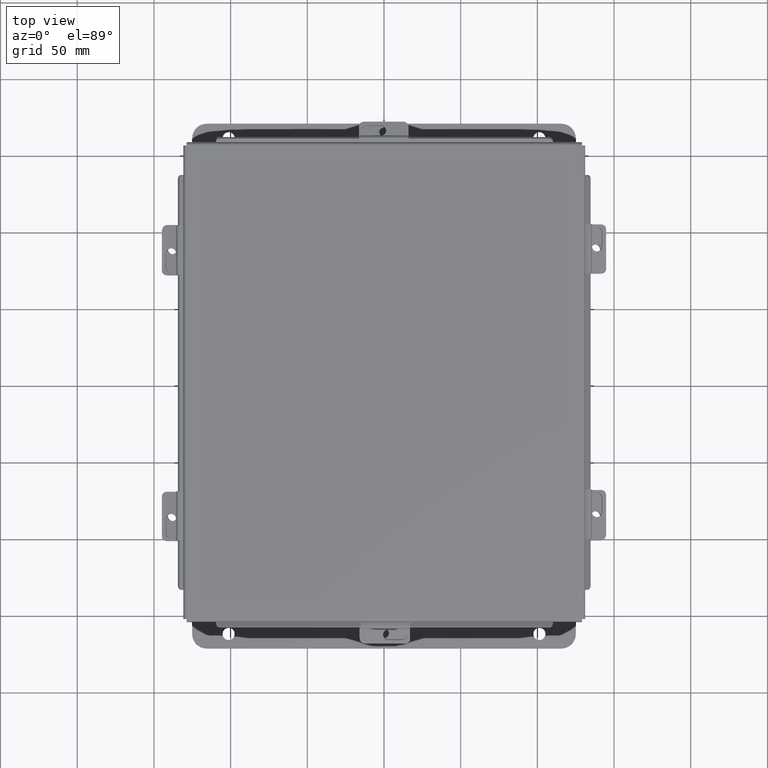
[diagram: clean part render]
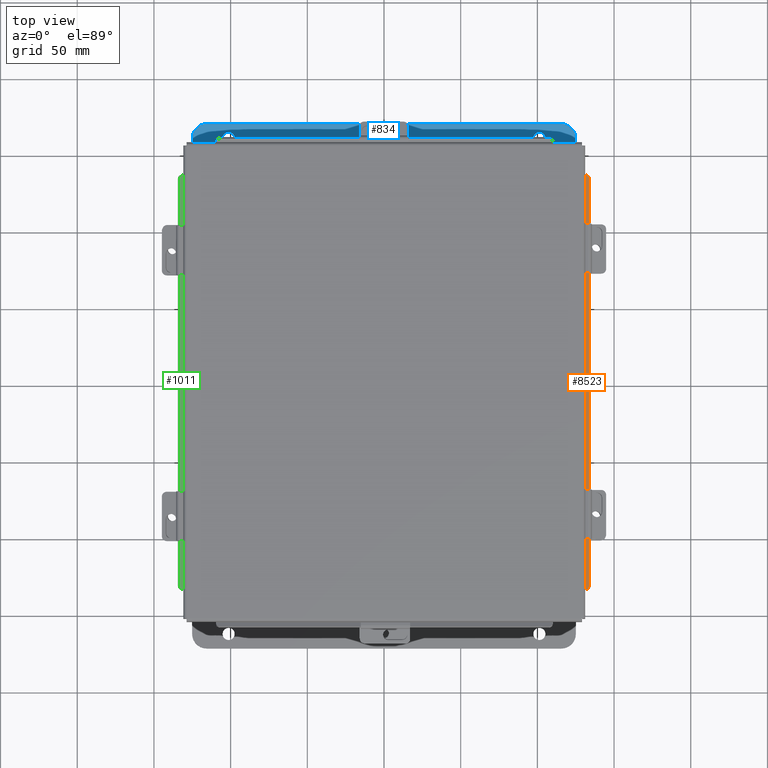
[diagram: same view with three faces highlighted in distinct colors, each labeled with its STEP entity id]
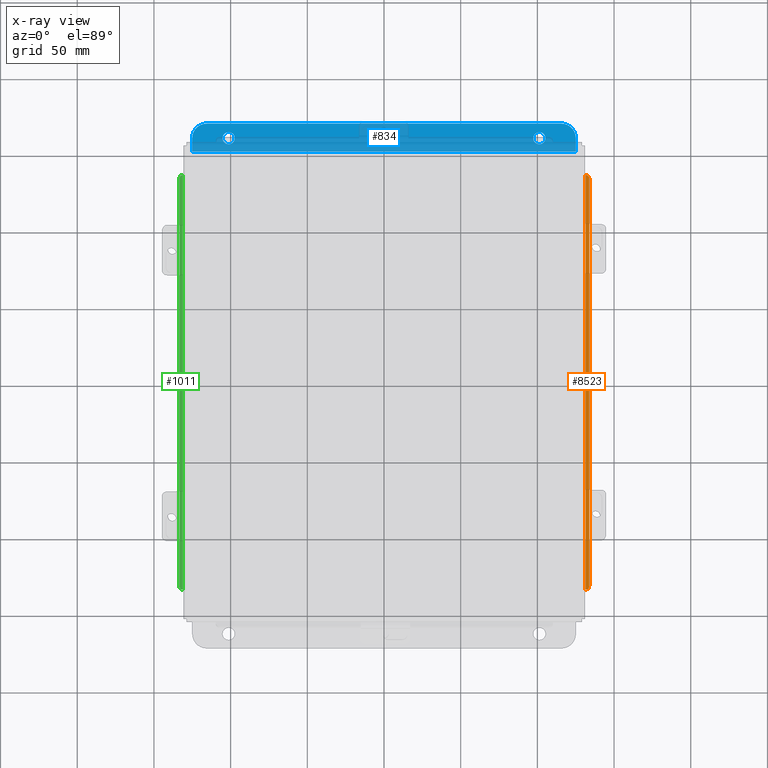
[diagram: x-ray of the same camera — body ghosted, the three highlighted faces saturated]
A machine part, top view with three faces highlighted in distinct colors.
The next image is the same camera in x-ray (body ghosted, the three faces saturated) — at least one of them is partly hidden behind the body in this view.
Their STEP definitions:

[orange] entity #8523 — the highlighted planar face has unit normal (-0.5, -0, 0.866).
#95 = EDGE_CURVE ( 'NONE', #7526, #5861, #8710, .T. ) ;
#123 = DIRECTION ( 'NONE',  ( -0.8660254037844363800, 0.0000000000000000000, -0.5000000000000038900 ) ) ;
#210 = DIRECTION ( 'NONE',  ( 0.5000000000000018900, -1.449531913343603300E-029, -0.8660254037844376000 ) ) ;
#691 = VECTOR ( 'NONE', #7024, 39.37007874015748100 ) ;
#1115 = CARTESIAN_POINT ( 'NONE',  ( -5.260706350946129800, -5.324478932188125800, 0.4269920976626979700 ) ) ;
#1608 = CARTESIAN_POINT ( 'NONE',  ( -5.169750000000020100, 5.324478932188144500, 0.4795057713659400300 ) ) ;
#1811 = CARTESIAN_POINT ( 'NONE',  ( -5.174103810567687300, 5.324478932188145400, 0.4769920976626966200 ) ) ;
#2094 = CARTESIAN_POINT ( 'NONE',  ( -5.260706350946129800, 5.324478932188144500, 0.4269920976626969100 ) ) ;
#2164 = EDGE_CURVE ( 'NONE', #9226, #2580, #9129, .T. ) ;
#2327 = VERTEX_POINT ( 'NONE', #6814 ) ;
#2580 = VERTEX_POINT ( 'NONE', #1811 ) ;
#2762 = CARTESIAN_POINT ( 'NONE',  ( -5.169750000000020100, -5.324478932188125800, 0.4795057713659400300 ) ) ;
#2859 = ORIENTED_EDGE ( 'NONE', *, *, #95, .F. ) ;
#3298 = CARTESIAN_POINT ( 'NONE',  ( -5.260706350946129800, -5.224478932188126200, 0.4269920976626979700 ) ) ;
#3418 = ORIENTED_EDGE ( 'NONE', *, *, #8205, .F. ) ;
#3489 = LINE ( 'NONE', #2762, #7231 ) ;
#4151 = ORIENTED_EDGE ( 'NONE', *, *, #9468, .F. ) ;
#4264 = ORIENTED_EDGE ( 'NONE', *, *, #2164, .F. ) ;
#4439 = AXIS2_PLACEMENT_3D ( 'NONE', #5030, #4955, #4915 ) ;
#4553 = DIRECTION ( 'NONE',  ( 0.5000000000000017800, -1.449531913343603300E-029, -0.8660254037844376000 ) ) ;
#4639 = CARTESIAN_POINT ( 'NONE',  ( -1.500069589632094100, 0.0000000000000000000, 2.598196744131770600 ) ) ;
#4814 = DIRECTION ( 'NONE',  ( 0.8660254037844374900, 1.194384714311183600E-029, 0.5000000000000017800 ) ) ;
#4864 = LINE ( 'NONE', #1115, #691 ) ;
#4915 = DIRECTION ( 'NONE',  ( -0.8660254037844363800, 0.0000000000000000000, -0.5000000000000038900 ) ) ;
#4955 = DIRECTION ( 'NONE',  ( 0.5000000000000017800, -1.449531913343603300E-029, -0.8660254037844376000 ) ) ;
#5030 = CARTESIAN_POINT ( 'NONE',  ( -5.174103810567685500, 5.224478932188144000, 0.4769920976626966200 ) ) ;
#5365 = CIRCLE ( 'NONE', #5708, 0.09999999999999993600 ) ;
#5412 = DIRECTION ( 'NONE',  ( -0.8660254037844374900, -1.194384714311183600E-029, -0.5000000000000017800 ) ) ;
#5704 = EDGE_LOOP ( 'NONE', ( #2859, #6699, #4151, #6631, #4264, #3418 ) ) ;
#5708 = AXIS2_PLACEMENT_3D ( 'NONE', #9096, #4553, #123 ) ;
#5740 = DIRECTION ( 'NONE',  ( 3.348834563362352300E-030, 1.000000000000000000, -1.539219909660494200E-016 ) ) ;
#5861 = VERTEX_POINT ( 'NONE', #8998 ) ;
#6134 = EDGE_CURVE ( 'NONE', #2327, #2580, #6190, .T. ) ;
#6190 = CIRCLE ( 'NONE', #4439, 0.09999999999999993600 ) ;
#6631 = ORIENTED_EDGE ( 'NONE', *, *, #6134, .T. ) ;
#6699 = ORIENTED_EDGE ( 'NONE', *, *, #7911, .T. ) ;
#6814 = CARTESIAN_POINT ( 'NONE',  ( -5.260706350946129800, 5.224478932188144000, 0.4269920976626969100 ) ) ;
#7024 = DIRECTION ( 'NONE',  ( -3.166671605124525800E-030, -1.000000000000000000, -1.853823127269377700E-029 ) ) ;
#7135 = CARTESIAN_POINT ( 'NONE',  ( -5.174103810567685500, -5.324478932188125800, 0.4769920976626966200 ) ) ;
#7231 = VECTOR ( 'NONE', #5740, 39.37007874015748100 ) ;
#7332 = VECTOR ( 'NONE', #8300, 39.37007874015748900 ) ;
#7526 = VERTEX_POINT ( 'NONE', #7135 ) ;
#7708 = AXIS2_PLACEMENT_3D ( 'NONE', #4639, #210, #5412 ) ;
#7911 = EDGE_CURVE ( 'NONE', #7526, #9423, #5365, .T. ) ;
#8205 = EDGE_CURVE ( 'NONE', #5861, #9226, #3489, .T. ) ;
#8300 = DIRECTION ( 'NONE',  ( -0.8660254037844364900, -9.059668427480799000E-015, -0.5000000000000036600 ) ) ;
#8523 = ADVANCED_FACE ( 'NONE', ( #9136 ), #9177, .T. ) ;
#8565 = VECTOR ( 'NONE', #4814, 39.37007874015748100 ) ;
#8710 = LINE ( 'NONE', #8800, #8565 ) ;
#8800 = CARTESIAN_POINT ( 'NONE',  ( -5.156250000000019500, -5.324478932188125800, 0.4873000000000000100 ) ) ;
#8998 = CARTESIAN_POINT ( 'NONE',  ( -5.169750000000020100, -5.324478932188125800, 0.4795057713659400300 ) ) ;
#9096 = CARTESIAN_POINT ( 'NONE',  ( -5.174103810567685500, -5.224478932188126200, 0.4769920976626977300 ) ) ;
#9129 = LINE ( 'NONE', #2094, #7332 ) ;
#9136 = FACE_OUTER_BOUND ( 'NONE', #5704, .T. ) ;
#9177 = PLANE ( 'NONE',  #7708 ) ;
#9226 = VERTEX_POINT ( 'NONE', #1608 ) ;
#9423 = VERTEX_POINT ( 'NONE', #3298 ) ;
#9468 = EDGE_CURVE ( 'NONE', #2327, #9423, #4864, .T. ) ;

[blue] entity #834 — the highlighted planar face has unit normal (0, 0, 1).
#41 = CARTESIAN_POINT ( 'NONE',  ( -4.925300000000000000, 0.7378000000000000100, -3.112300000000003000 ) ) ;
#104 = VERTEX_POINT ( 'NONE', #4244 ) ;
#256 = CARTESIAN_POINT ( 'NONE',  ( 3.987800000000000000, 0.3627999999999997300, -3.112300000000001200 ) ) ;
#294 = VECTOR ( 'NONE', #1116, 39.37007874015748100 ) ;
#415 = DIRECTION ( 'NONE',  ( -1.000000000000000000, 0.0000000000000000000, 0.0000000000000000000 ) ) ;
#511 = ORIENTED_EDGE ( 'NONE', *, *, #5300, .F. ) ;
#528 = ORIENTED_EDGE ( 'NONE', *, *, #5806, .T. ) ;
#578 = ORIENTED_EDGE ( 'NONE', *, *, #5616, .T. ) ;
#646 = DIRECTION ( 'NONE',  ( 0.0000000000000000000, -1.000000000000000000, 3.502369222646487400E-015 ) ) ;
#760 = EDGE_CURVE ( 'NONE', #8305, #8860, #9139, .T. ) ;
#834 = ADVANCED_FACE ( 'NONE', ( #5945, #6079, #6767 ), #3626, .T. ) ;
#973 = CARTESIAN_POINT ( 'NONE',  ( 4.925300000000000000, 0.01300000000000010700, -3.112299999999999800 ) ) ;
#1116 = DIRECTION ( 'NONE',  ( -0.0000000000000000000, 1.000000000000000000, -3.702694488566362300E-015 ) ) ;
#1269 = DIRECTION ( 'NONE',  ( 0.0000000000000000000, 3.702694488566362300E-015, 1.000000000000000000 ) ) ;
#1301 = DIRECTION ( 'NONE',  ( -0.0000000000000000000, -3.702694488566362300E-015, -1.000000000000000000 ) ) ;
#1302 = CARTESIAN_POINT ( 'NONE',  ( -4.925300000000000000, 0.3628000000000008400, -3.112300000000001200 ) ) ;
#1304 = CIRCLE ( 'NONE', #1607, 0.3750000000000000600 ) ;
#1453 = VECTOR ( 'NONE', #2683, 39.37007874015748100 ) ;
#1470 = EDGE_CURVE ( 'NONE', #8860, #1808, #6833, .T. ) ;
#1538 = CIRCLE ( 'NONE', #7710, 0.1560000000000001700 ) ;
#1607 = AXIS2_PLACEMENT_3D ( 'NONE', #6944, #7488, #8208 ) ;
#1688 = AXIS2_PLACEMENT_3D ( 'NONE', #5622, #1269, #3501 ) ;
#1774 = EDGE_CURVE ( 'NONE', #8278, #7815, #1538, .T. ) ;
#1808 = VERTEX_POINT ( 'NONE', #1302 ) ;
#1824 = CARTESIAN_POINT ( 'NONE',  ( 4.925300000000000000, 0.3627999999999997300, -3.112300000000001200 ) ) ;
#1953 = CARTESIAN_POINT ( 'NONE',  ( -3.987800000000000900, 0.3627999999999997300, -3.112300000000001200 ) ) ;
#2542 = AXIS2_PLACEMENT_3D ( 'NONE', #6804, #6687, #6307 ) ;
#2683 = DIRECTION ( 'NONE',  ( -0.0000000000000000000, -1.000000000000000000, 3.702694488566362300E-015 ) ) ;
#2873 = ORIENTED_EDGE ( 'NONE', *, *, #8691, .T. ) ;
#2879 = AXIS2_PLACEMENT_3D ( 'NONE', #256, #1301, #646 ) ;
#3080 = VERTEX_POINT ( 'NONE', #4250 ) ;
#3388 = DIRECTION ( 'NONE',  ( -0.0000000000000000000, -3.702694488566362300E-015, -1.000000000000000000 ) ) ;
#3465 = CARTESIAN_POINT ( 'NONE',  ( 3.987800000000000000, 0.5187999999999999300, -3.112300000000001600 ) ) ;
#3501 = DIRECTION ( 'NONE',  ( 0.0000000000000000000, -1.000000000000000000, 3.702694488566362300E-015 ) ) ;
#3626 = PLANE ( 'NONE',  #1688 ) ;
#3668 = EDGE_CURVE ( 'NONE', #7541, #104, #7467, .T. ) ;
#3778 = DIRECTION ( 'NONE',  ( -0.0000000000000000000, -3.702694488566362300E-015, -1.000000000000000000 ) ) ;
#4208 = CARTESIAN_POINT ( 'NONE',  ( -4.925299999999999100, 0.01300000000000010700, -3.112299999999999800 ) ) ;
#4244 = CARTESIAN_POINT ( 'NONE',  ( 4.550300000000000000, 0.7378000000000000100, -3.112300000000003000 ) ) ;
#4250 = CARTESIAN_POINT ( 'NONE',  ( 3.987800000000000000, 0.2067999999999996000, -3.112300000000000700 ) ) ;
#4878 = CARTESIAN_POINT ( 'NONE',  ( 4.925300000000000000, 0.0000000000000000000, -3.112299999999999800 ) ) ;
#4880 = ORIENTED_EDGE ( 'NONE', *, *, #760, .F. ) ;
#4958 = ORIENTED_EDGE ( 'NONE', *, *, #1470, .F. ) ;
#5116 = EDGE_CURVE ( 'NONE', #7541, #1808, #1304, .T. ) ;
#5300 = EDGE_CURVE ( 'NONE', #7446, #8305, #5629, .T. ) ;
#5484 = DIRECTION ( 'NONE',  ( 1.000000000000000000, -0.0000000000000000000, -0.0000000000000000000 ) ) ;
#5616 = EDGE_CURVE ( 'NONE', #7446, #104, #8455, .T. ) ;
#5622 = CARTESIAN_POINT ( 'NONE',  ( 0.0000000000000000000, -1.092739197465705300E-014, -3.112299999999999800 ) ) ;
#5629 = LINE ( 'NONE', #4878, #1453 ) ;
#5806 = EDGE_CURVE ( 'NONE', #3080, #5883, #6099, .T. ) ;
#5883 = VERTEX_POINT ( 'NONE', #3465 ) ;
#5945 = FACE_BOUND ( 'NONE', #7681, .T. ) ;
#6079 = FACE_BOUND ( 'NONE', #6649, .T. ) ;
#6099 = CIRCLE ( 'NONE', #2879, 0.1560000000000001700 ) ;
#6307 = DIRECTION ( 'NONE',  ( 0.0000000000000000000, -1.000000000000000000, 4.370956789862820400E-015 ) ) ;
#6570 = DIRECTION ( 'NONE',  ( -0.0000000000000000000, -3.702694488566362300E-015, -1.000000000000000000 ) ) ;
#6649 = EDGE_LOOP ( 'NONE', ( #8743, #528 ) ) ;
#6687 = DIRECTION ( 'NONE',  ( 0.0000000000000000000, 3.702694488566362300E-015, 1.000000000000000000 ) ) ;
#6762 = DIRECTION ( 'NONE',  ( 0.0000000000000000000, -1.000000000000000000, 3.502369222646487400E-015 ) ) ;
#6767 = FACE_OUTER_BOUND ( 'NONE', #9607, .T. ) ;
#6804 = CARTESIAN_POINT ( 'NONE',  ( 4.550300000000000000, 0.3627999999999997300, -3.112300000000001200 ) ) ;
#6833 = LINE ( 'NONE', #41, #294 ) ;
#6944 = CARTESIAN_POINT ( 'NONE',  ( -4.550300000000000000, 0.3628000000000008400, -3.112300000000001200 ) ) ;
#6959 = CARTESIAN_POINT ( 'NONE',  ( 4.925300000000000000, 0.7378000000000000100, -3.112300000000003000 ) ) ;
#7247 = AXIS2_PLACEMENT_3D ( 'NONE', #8283, #3778, #9059 ) ;
#7325 = ORIENTED_EDGE ( 'NONE', *, *, #5116, .T. ) ;
#7446 = VERTEX_POINT ( 'NONE', #1824 ) ;
#7467 = LINE ( 'NONE', #6959, #9593 ) ;
#7488 = DIRECTION ( 'NONE',  ( 0.0000000000000000000, 3.702694488566362300E-015, 1.000000000000000000 ) ) ;
#7541 = VERTEX_POINT ( 'NONE', #9410 ) ;
#7681 = EDGE_LOOP ( 'NONE', ( #7860, #2873 ) ) ;
#7699 = CIRCLE ( 'NONE', #9361, 0.1560000000000001700 ) ;
#7710 = AXIS2_PLACEMENT_3D ( 'NONE', #1953, #6570, #6762 ) ;
#7815 = VERTEX_POINT ( 'NONE', #8967 ) ;
#7860 = ORIENTED_EDGE ( 'NONE', *, *, #1774, .T. ) ;
#7878 = CARTESIAN_POINT ( 'NONE',  ( -3.987800000000000900, 0.3627999999999997300, -3.112300000000001200 ) ) ;
#7925 = ORIENTED_EDGE ( 'NONE', *, *, #3668, .F. ) ;
#8069 = CIRCLE ( 'NONE', #7247, 0.1560000000000001700 ) ;
#8072 = VECTOR ( 'NONE', #415, 39.37007874015748100 ) ;
#8093 = CARTESIAN_POINT ( 'NONE',  ( -3.987800000000000900, 0.5187999999999999300, -3.112300000000001600 ) ) ;
#8208 = DIRECTION ( 'NONE',  ( 0.0000000000000000000, -1.000000000000000000, 4.370956789862820400E-015 ) ) ;
#8278 = VERTEX_POINT ( 'NONE', #8093 ) ;
#8283 = CARTESIAN_POINT ( 'NONE',  ( 3.987800000000000000, 0.3627999999999997300, -3.112300000000001200 ) ) ;
#8305 = VERTEX_POINT ( 'NONE', #9732 ) ;
#8402 = EDGE_CURVE ( 'NONE', #5883, #3080, #8069, .T. ) ;
#8455 = CIRCLE ( 'NONE', #2542, 0.3750000000000000600 ) ;
#8667 = DIRECTION ( 'NONE',  ( 0.0000000000000000000, -1.000000000000000000, 3.502369222646487400E-015 ) ) ;
#8691 = EDGE_CURVE ( 'NONE', #7815, #8278, #7699, .T. ) ;
#8743 = ORIENTED_EDGE ( 'NONE', *, *, #8402, .T. ) ;
#8860 = VERTEX_POINT ( 'NONE', #4208 ) ;
#8967 = CARTESIAN_POINT ( 'NONE',  ( -3.987800000000000900, 0.2067999999999996000, -3.112300000000000700 ) ) ;
#9059 = DIRECTION ( 'NONE',  ( 0.0000000000000000000, -1.000000000000000000, 3.502369222646487400E-015 ) ) ;
#9139 = LINE ( 'NONE', #973, #8072 ) ;
#9361 = AXIS2_PLACEMENT_3D ( 'NONE', #7878, #3388, #8667 ) ;
#9410 = CARTESIAN_POINT ( 'NONE',  ( -4.550300000000000000, 0.7378000000000000100, -3.112300000000003000 ) ) ;
#9593 = VECTOR ( 'NONE', #5484, 39.37007874015748100 ) ;
#9607 = EDGE_LOOP ( 'NONE', ( #511, #578, #7925, #7325, #4958, #4880 ) ) ;
#9732 = CARTESIAN_POINT ( 'NONE',  ( 4.925300000000000000, 0.01300000000000010700, -3.112299999999999800 ) ) ;

[green] entity #1011 — the highlighted planar face has unit normal (0.5, -0, 0.866).
#369 = LINE ( 'NONE', #533, #4078 ) ;
#451 = ORIENTED_EDGE ( 'NONE', *, *, #6729, .F. ) ;
#533 = CARTESIAN_POINT ( 'NONE',  ( 5.260706350946131600, 5.324478932188145400, 0.4269920976627045200 ) ) ;
#636 = CARTESIAN_POINT ( 'NONE',  ( 5.174103810567688200, -5.224478932188126200, 0.4769920976626977300 ) ) ;
#662 = DIRECTION ( 'NONE',  ( -0.5000000000000018900, -1.770006656089638500E-029, -0.8660254037844376000 ) ) ;
#880 = CARTESIAN_POINT ( 'NONE',  ( 1.500069589632094400, 4.268512490100411300E-018, 2.598196744131771000 ) ) ;
#966 = VERTEX_POINT ( 'NONE', #7528 ) ;
#1011 = ADVANCED_FACE ( 'NONE', ( #2915 ), #8697, .T. ) ;
#1045 = DIRECTION ( 'NONE',  ( 3.166671605124525800E-030, 1.000000000000000000, 1.853823127269377700E-029 ) ) ;
#1359 = ORIENTED_EDGE ( 'NONE', *, *, #9560, .F. ) ;
#1394 = LINE ( 'NONE', #9007, #3361 ) ;
#1492 = CIRCLE ( 'NONE', #7194, 0.09999999999999993600 ) ;
#1513 = ORIENTED_EDGE ( 'NONE', *, *, #7468, .T. ) ;
#2577 = CARTESIAN_POINT ( 'NONE',  ( 5.174103810567688200, 5.224478932188145700, 0.4769920976626966200 ) ) ;
#2817 = AXIS2_PLACEMENT_3D ( 'NONE', #880, #662, #7776 ) ;
#2915 = FACE_OUTER_BOUND ( 'NONE', #5356, .T. ) ;
#2965 = DIRECTION ( 'NONE',  ( -0.8660254037844363800, 0.0000000000000000000, 0.5000000000000038900 ) ) ;
#3304 = DIRECTION ( 'NONE',  ( -0.8660254037844363800, 0.0000000000000000000, 0.5000000000000038900 ) ) ;
#3361 = VECTOR ( 'NONE', #4459, 39.37007874015748100 ) ;
#3628 = VECTOR ( 'NONE', #4631, 39.37007874015748100 ) ;
#3651 = EDGE_CURVE ( 'NONE', #6005, #4954, #1492, .T. ) ;
#3785 = ORIENTED_EDGE ( 'NONE', *, *, #3651, .T. ) ;
#3855 = LINE ( 'NONE', #6080, #3628 ) ;
#4078 = VECTOR ( 'NONE', #1045, 39.37007874015748100 ) ;
#4147 = CARTESIAN_POINT ( 'NONE',  ( 5.260706350946131600, 5.224478932188145700, 0.4269920976627045200 ) ) ;
#4184 = CIRCLE ( 'NONE', #8802, 0.09999999999999993600 ) ;
#4427 = VERTEX_POINT ( 'NONE', #7628 ) ;
#4459 = DIRECTION ( 'NONE',  ( -0.8660254037844374900, 6.483450564785165600E-030, 0.5000000000000017800 ) ) ;
#4483 = ORIENTED_EDGE ( 'NONE', *, *, #7203, .F. ) ;
#4631 = DIRECTION ( 'NONE',  ( -1.026146606440486800E-016, -1.000000000000000000, -5.130733032204125000E-017 ) ) ;
#4954 = VERTEX_POINT ( 'NONE', #7460 ) ;
#4981 = VERTEX_POINT ( 'NONE', #7951 ) ;
#5236 = VECTOR ( 'NONE', #8781, 39.37007874015748900 ) ;
#5356 = EDGE_LOOP ( 'NONE', ( #7805, #1513, #4483, #3785, #1359, #451 ) ) ;
#5654 = VERTEX_POINT ( 'NONE', #4147 ) ;
#6005 = VERTEX_POINT ( 'NONE', #9703 ) ;
#6080 = CARTESIAN_POINT ( 'NONE',  ( 5.169750000000021800, 5.324478932188145400, 0.4795057713659400300 ) ) ;
#6729 = EDGE_CURVE ( 'NONE', #966, #4981, #3855, .T. ) ;
#7194 = AXIS2_PLACEMENT_3D ( 'NONE', #636, #9094, #2965 ) ;
#7203 = EDGE_CURVE ( 'NONE', #6005, #5654, #369, .T. ) ;
#7460 = CARTESIAN_POINT ( 'NONE',  ( 5.174103810567688200, -5.324478932188125800, 0.4769920976626977300 ) ) ;
#7468 = EDGE_CURVE ( 'NONE', #4427, #5654, #4184, .T. ) ;
#7528 = CARTESIAN_POINT ( 'NONE',  ( 5.169750000000021800, 5.324478932188145400, 0.4795057713659400300 ) ) ;
#7628 = CARTESIAN_POINT ( 'NONE',  ( 5.174103810567688200, 5.324478932188145400, 0.4769920976626966200 ) ) ;
#7776 = DIRECTION ( 'NONE',  ( -0.8660254037844374900, 6.483450564785164200E-030, 0.5000000000000017800 ) ) ;
#7801 = DIRECTION ( 'NONE',  ( -0.5000000000000017800, -1.770006656089638200E-029, -0.8660254037844376000 ) ) ;
#7805 = ORIENTED_EDGE ( 'NONE', *, *, #9110, .F. ) ;
#7951 = CARTESIAN_POINT ( 'NONE',  ( 5.169750000000021800, -5.324478932188124100, 0.4795057713659400300 ) ) ;
#7986 = CARTESIAN_POINT ( 'NONE',  ( 5.260706350946131600, -5.324478932188125800, 0.4269920976626969100 ) ) ;
#8697 = PLANE ( 'NONE',  #2817 ) ;
#8781 = DIRECTION ( 'NONE',  ( 0.8660254037844364900, -6.532754371361476000E-030, -0.5000000000000036600 ) ) ;
#8802 = AXIS2_PLACEMENT_3D ( 'NONE', #2577, #7801, #3304 ) ;
#9007 = CARTESIAN_POINT ( 'NONE',  ( 5.156250000000022200, 5.324478932188145400, 0.4872999999999989000 ) ) ;
#9094 = DIRECTION ( 'NONE',  ( -0.5000000000000017800, -1.770006656089638200E-029, -0.8660254037844376000 ) ) ;
#9110 = EDGE_CURVE ( 'NONE', #4427, #966, #1394, .T. ) ;
#9248 = LINE ( 'NONE', #7986, #5236 ) ;
#9560 = EDGE_CURVE ( 'NONE', #4981, #4954, #9248, .T. ) ;
#9703 = CARTESIAN_POINT ( 'NONE',  ( 5.260706350946131600, -5.224478932188126200, 0.4269920976626969100 ) ) ;